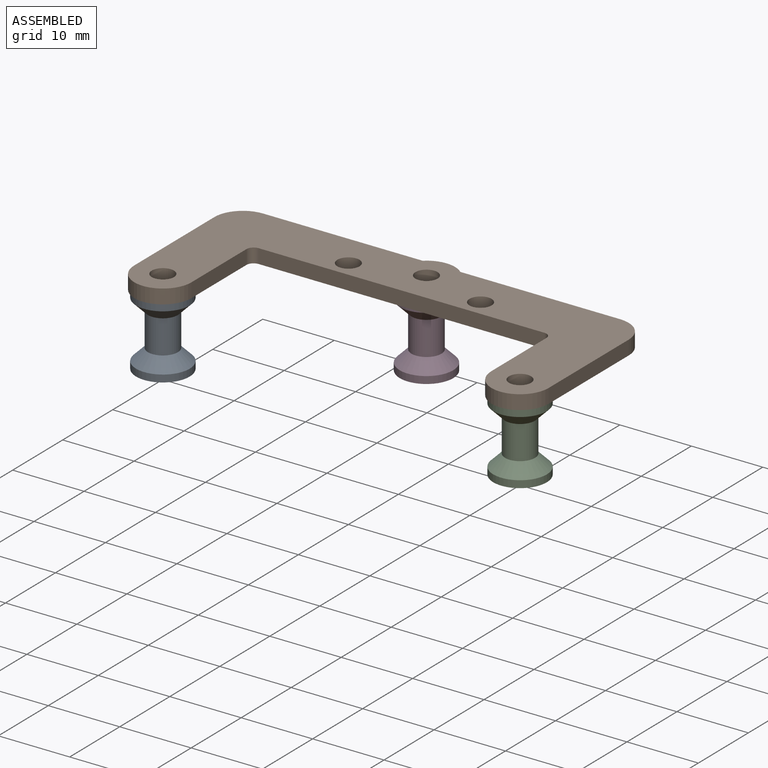
[diagram: assembled view]
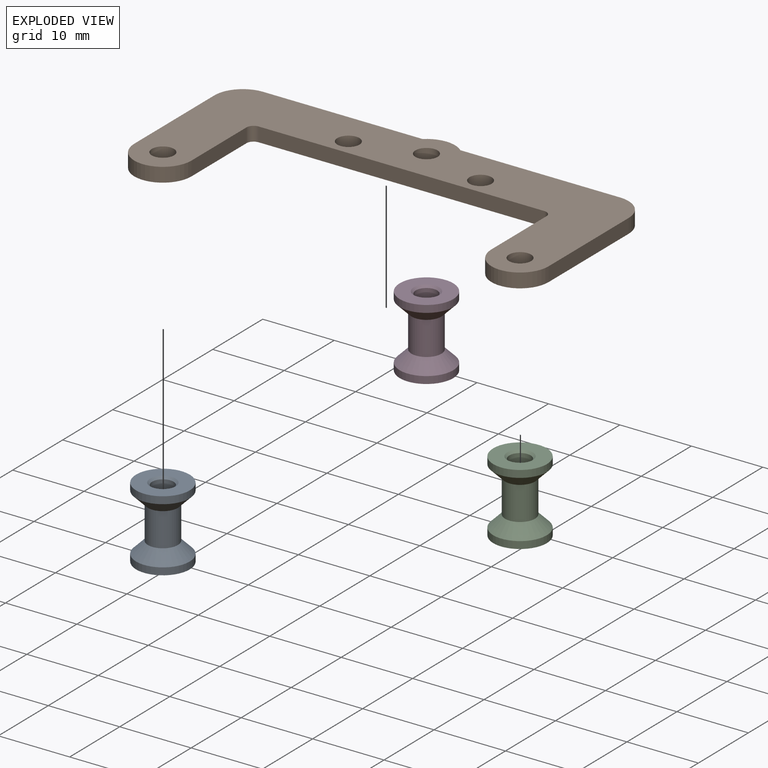
[diagram: exploded view]
GUIDED TOUR — MATED ASSEMBLY (Onshape document 5818caa24639c411078c767a, AutoMate assembly 5818caa24639c411078c767a_b3a73f36aeb4bb727f7abca7_d0a38f629c619f8892c96999_default)

This assembly has 4 components, labeled P0..P3 below (a component is one placed occurrence of a part; the same part can appear more than once), held together by 3 mates. A mate is a constraint between two components; its type names the relative motion it leaves free:
  FASTENED — locks the two components together rigidly (no relative motion).
Axis/direction vectors are unit vectors and 'through' points are millimeter coordinates, both in the assembly's world frame.

MATES
  1. FASTENED "Fastened 2": P3 <-> P1, direction (0.000, 0.000, 1.000) through (4.53, 14.87, 3.28) mm
  2. FASTENED "Fastened 1": P0 <-> P1, direction (0.000, 0.000, 1.000) through (-20.47, -2.13, 3.28) mm
  3. FASTENED "Fastened 3": P2 <-> P1, direction (0.000, 0.000, 1.000) through (29.53, -2.13, 3.28) mm

ASSEMBLY ORDER
  1. P3 — the base component [order verified]
  2. P2 [order verified]
  3. P0 [order verified]
  4. P1 [order verified]
Order-tag legend:
  [order verified] — this step's position reverses a verified removal order: the component was checked to insert without passing through the ones already placed.

Of the 4 components, 1 carries the full construction recipe — the FeatureScript program that regenerates the part's solid from scratch; the rest are supplied as boundary geometry only.
Each toured component is shown spotlighted twice — in the assembled view, then in the exploded view, where a leader line traces a displaced component back to its assembled socket (saturated green if recipe-attached, orange if geometry-only; every other component desaturated gray) — followed by its recipe or geometry summary and the mates that hold it.
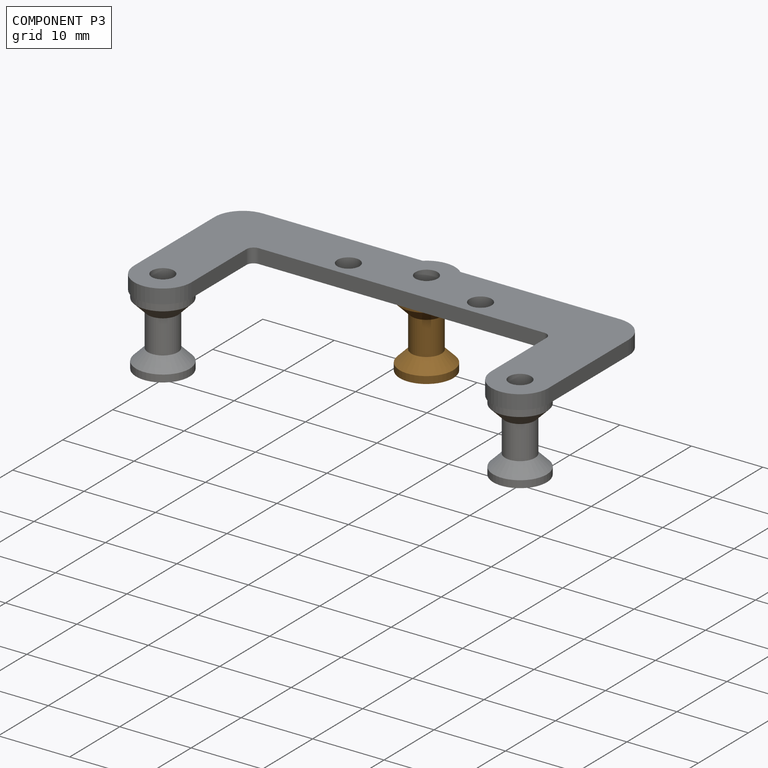
[diagram: component P3 — assembled]
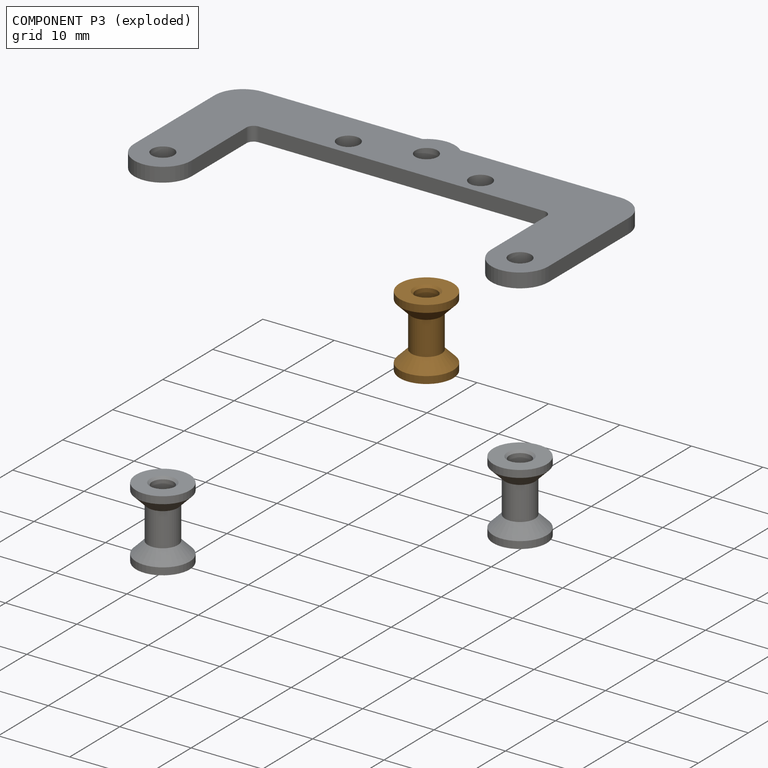
[diagram: component P3 — exploded]
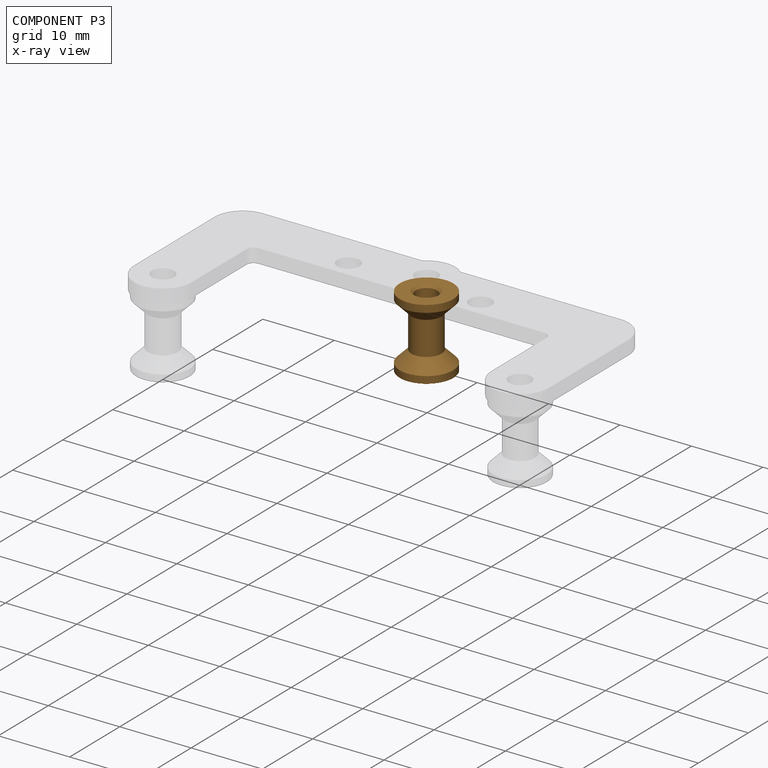
[diagram: component P3 — x-ray view]
COMPONENT P3 — geometry summary (no construction recipe available for this part):
  bounding box: 10.0 x 7.5 x 7.5 mm
  B-rep topology: 1 solid, 10 faces, 36 edges
  volume: 173 mm^3 (31% of its bounding box)
  symmetry: 2-fold rotationally symmetric about the x axis; 2-fold rotationally symmetric about the y axis; revolution-symmetric about the z axis through its bounding-box center; mirror-symmetric across its x mid-plane, y mid-plane, z mid-plane
Held by: FASTENED mate "Fastened 2" to P1.
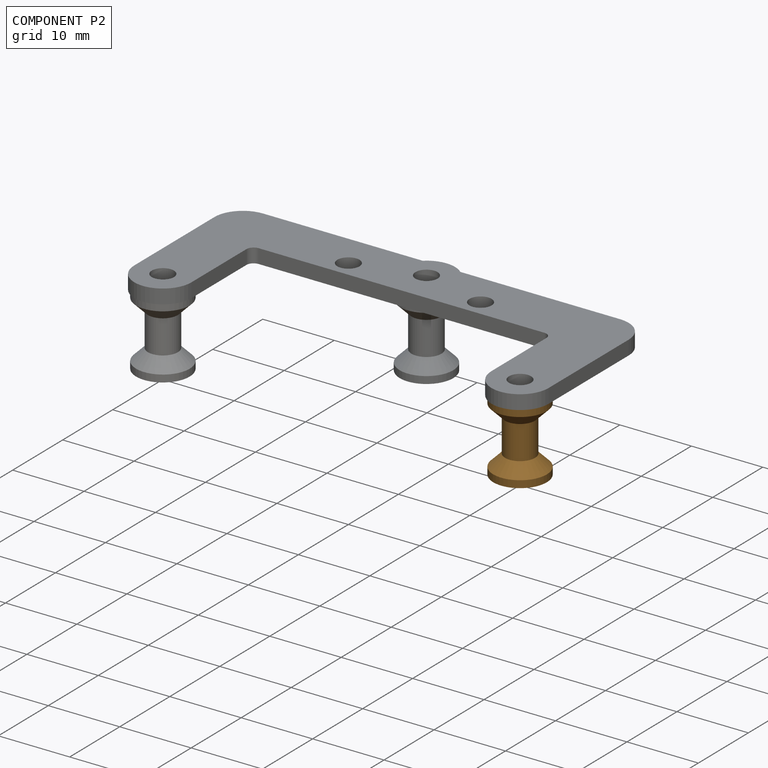
[diagram: component P2 — assembled]
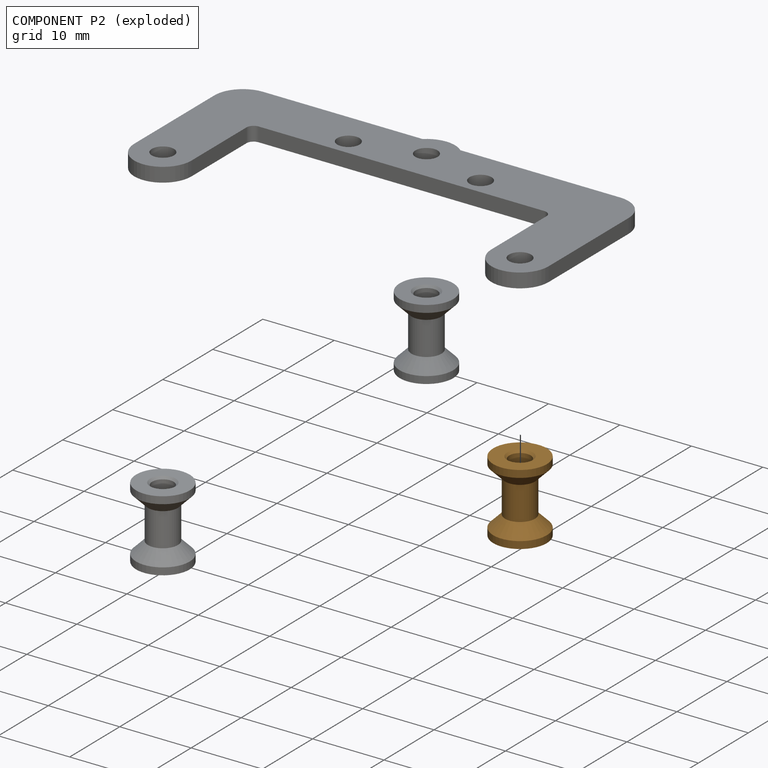
[diagram: component P2 — exploded]
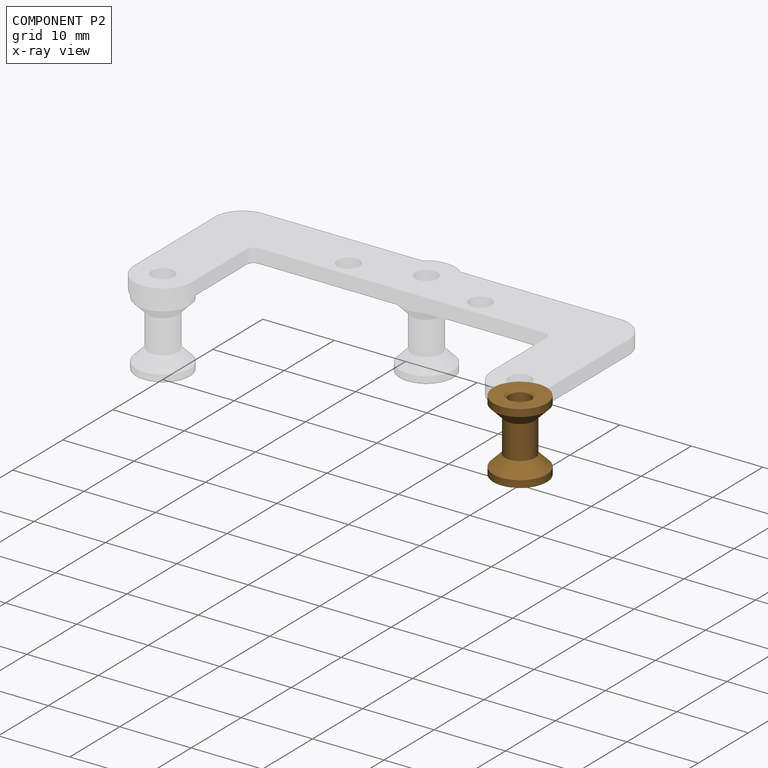
[diagram: component P2 — x-ray view]
COMPONENT P2 — geometry summary (no construction recipe available for this part):
  bounding box: 10.0 x 7.5 x 7.5 mm
  B-rep topology: 1 solid, 10 faces, 36 edges
  volume: 173 mm^3 (31% of its bounding box)
  symmetry: 2-fold rotationally symmetric about the x axis; 2-fold rotationally symmetric about the y axis; revolution-symmetric about the z axis through its bounding-box center; mirror-symmetric across its x mid-plane, y mid-plane, z mid-plane
Held by: FASTENED mate "Fastened 3" to P1.
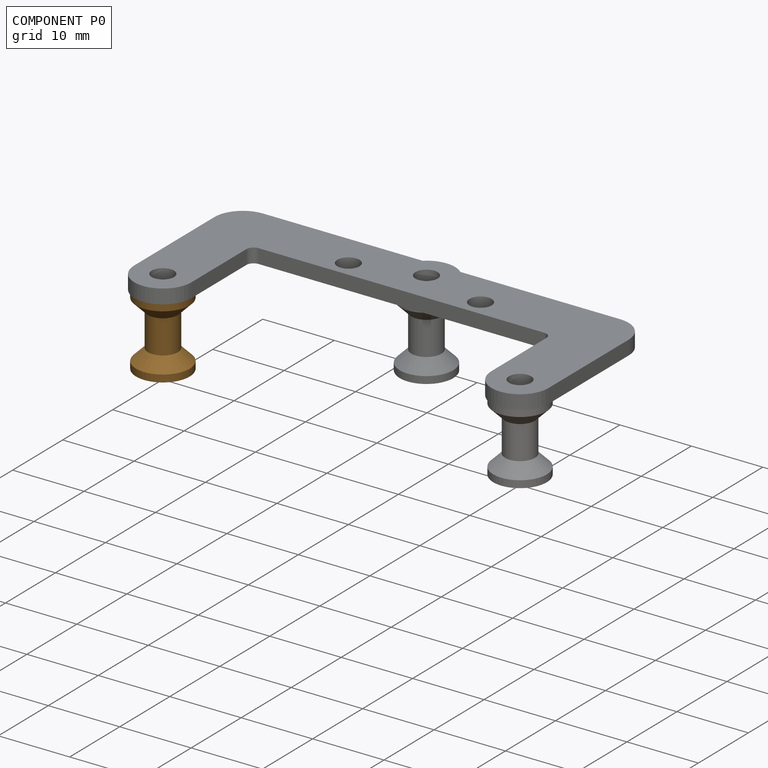
[diagram: component P0 — assembled]
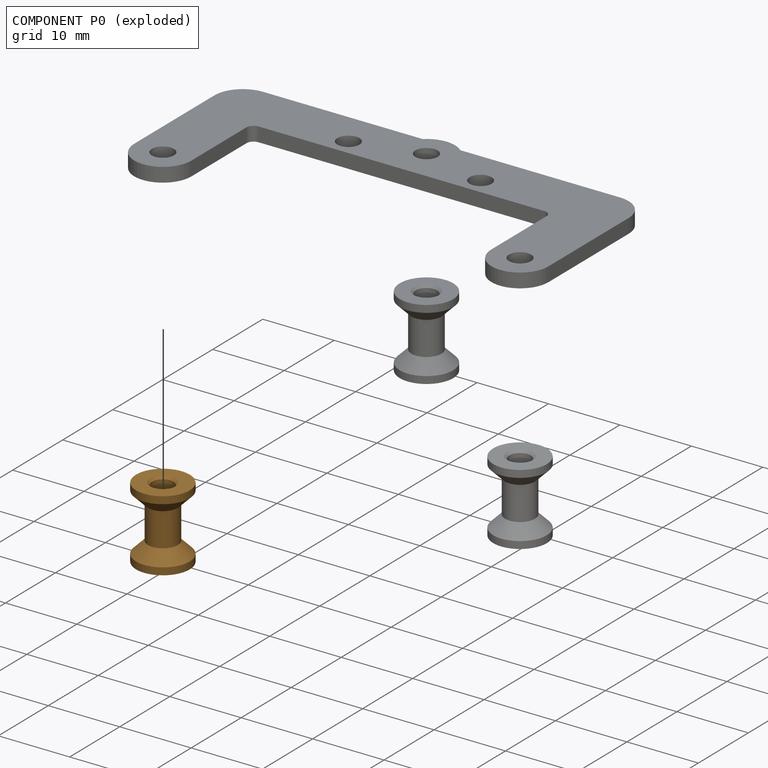
[diagram: component P0 — exploded]
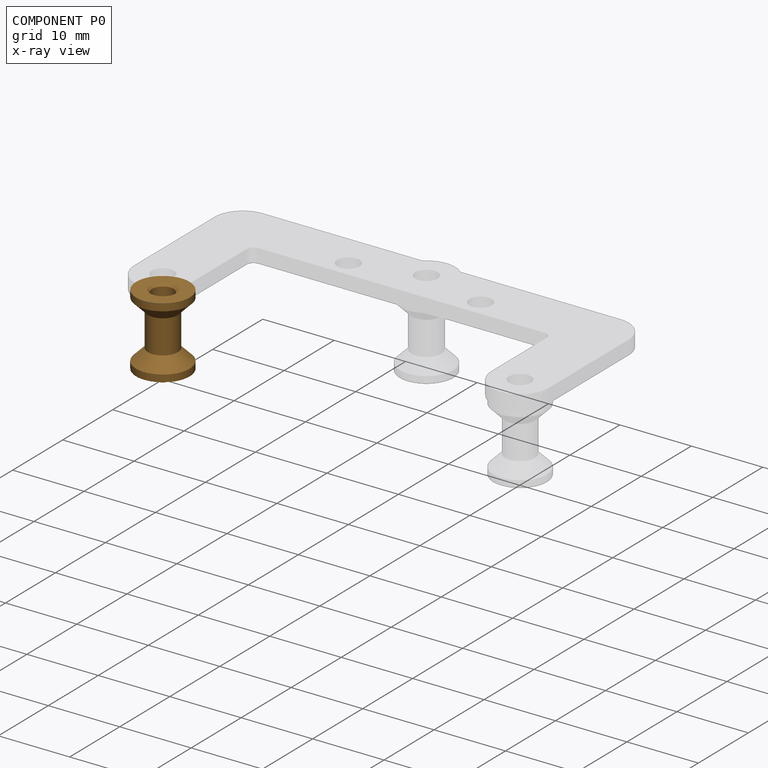
[diagram: component P0 — x-ray view]
COMPONENT P0 — geometry summary (no construction recipe available for this part):
  bounding box: 10.0 x 7.5 x 7.5 mm
  B-rep topology: 1 solid, 10 faces, 36 edges
  volume: 173 mm^3 (31% of its bounding box)
  symmetry: 2-fold rotationally symmetric about the x axis; 2-fold rotationally symmetric about the y axis; revolution-symmetric about the z axis through its bounding-box center; mirror-symmetric across its x mid-plane, y mid-plane, z mid-plane
Held by: FASTENED mate "Fastened 1" to P1.
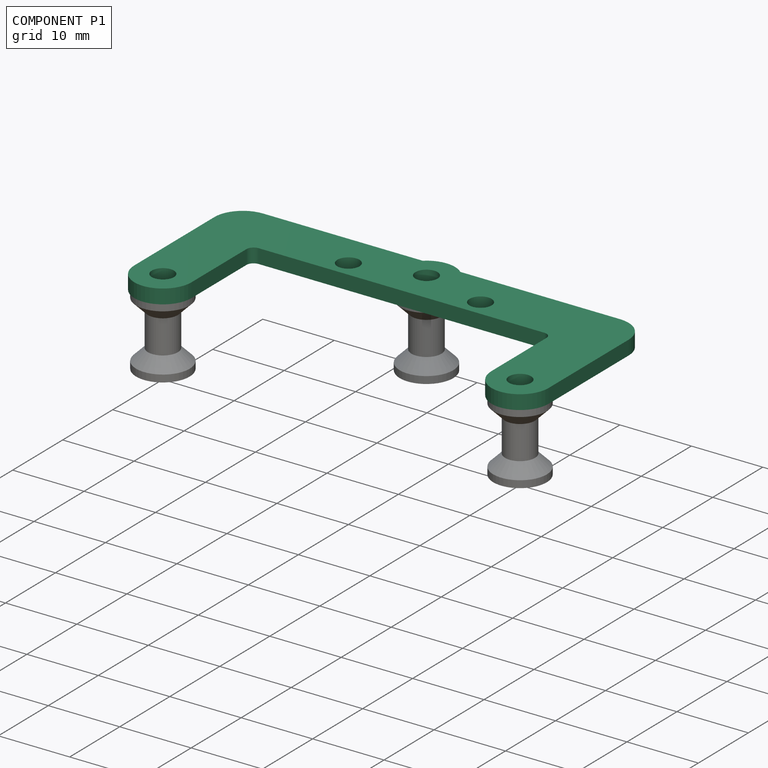
[diagram: component P1 — assembled]
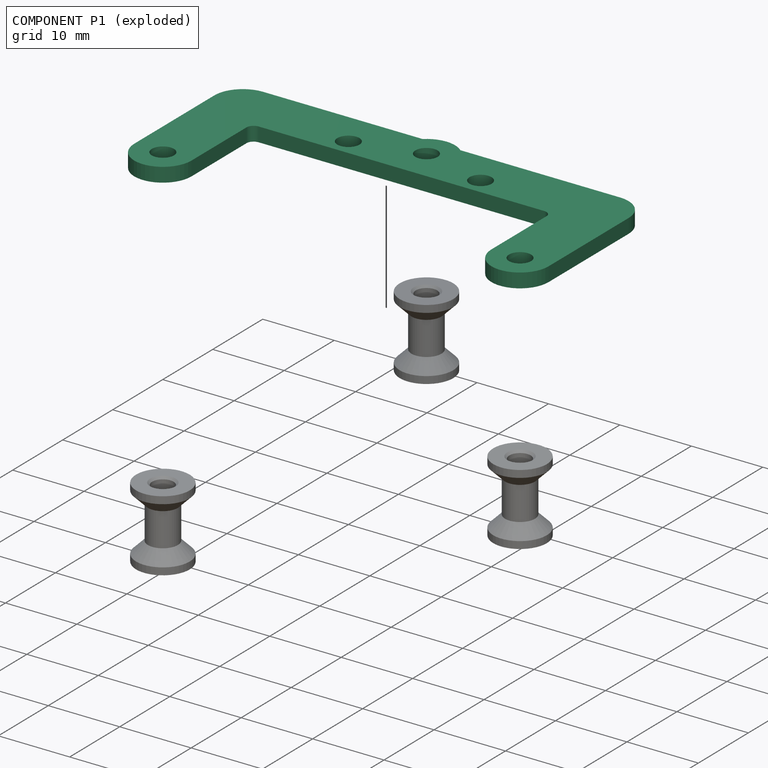
[diagram: component P1 — exploded]
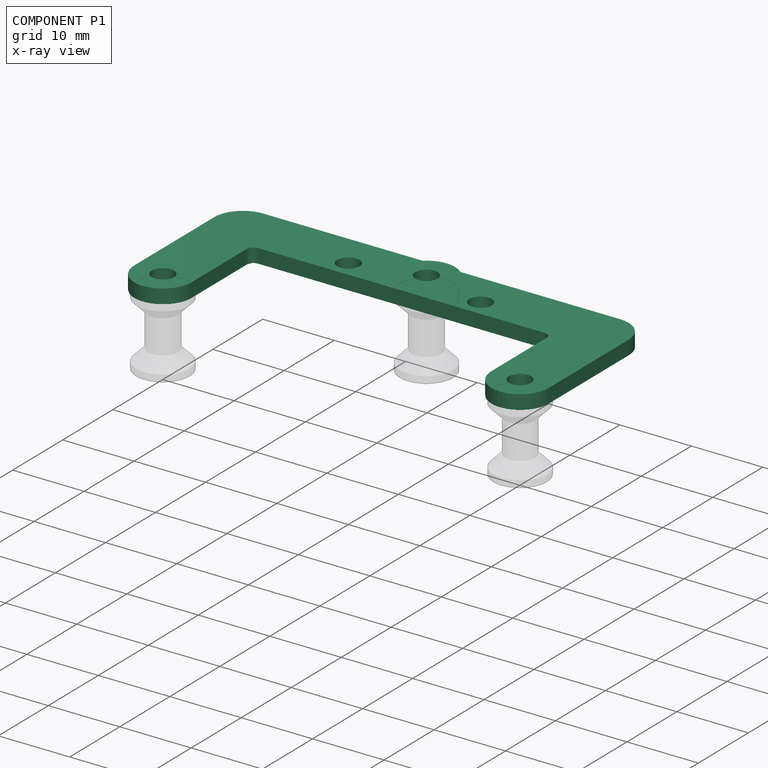
[diagram: component P1 — x-ray view]
COMPONENT P1 — recipe-attached (CADFS 00307878, mesh-verified: the recipe's output STEP matches this component's geometry to below the mesh-comparison resolution (tessellation chordal tolerance ~0.0948 mm)).
Held by: FASTENED mate "Fastened 2" to P3; FASTENED mate "Fastened 1" to P0; FASTENED mate "Fastened 3" to P2.
Construction recipe (FeatureScript — the CAD program that rebuilds this solid; sketch coordinates are in the units given by the * unit suffixes, e.g. mm):

FeatureScript 1511;
import(path : "onshape/std/geometry.fs", version : "1511.0");
import(path : "onshape/std/common.fs", version : "1511.0");
const mm = millimeter;
const VERTEX = EntityType.VERTEX;
const EDGE = EntityType.EDGE;
const FACE = EntityType.FACE;
const BODY = EntityType.BODY;
function v(x, y){return vector(x, y);}
function OD(order){return orderDisambiguation(order);}
function OSD(set){return originalSetDisambiguation(set);}
function TD(topology){return topologyDisambiguation(topology);}
function TDD(query){return trueDependencyDisambiguation(query);}
function sQuery(a, b, c) {return sketchEntityQuery(a, b, c);}

annotation { "Feature Type Name" : "Feature", "Feature Type Description" : "" }
export const myFeature = defineFeature(function(context is Context, id is Id, definition is map)
    precondition{}
    {
        {
            var Q0;
            Q0=qCreatedBy(makeId("Top.planeOp"),FACE);
            var sketch = newSketch(context, id + "F0", { "sketchPlane" : qUnion([Q0])});
            skLineSegment(sketch, "E0.bottom", {"start": v(20, -5) * mm, "end": v(-20, -5) * mm});
            skPoint(sketch, "E0.middle", {"position": v(0, 0) * mm});
            skCircle(sketch, "E1", {"center": v(9.25, -2.4) * mm, "radius": 1.55 * mm});
            skCircle(sketch, "E2", {"center": v(-9.25, -2.4) * mm, "radius": 1.55 * mm});
            skCircle(sketch, "E3", {"center": v(0, 0) * mm, "radius": 1.55 * mm});
            skLineSegment(sketch, "E4.top", {"start": v(25, -21) * mm, "end": v(25, -21) * mm});
            skLineSegment(sketch, "E4.left", {"start": v(21, -6) * mm, "end": v(21, -17) * mm});
            skLineSegment(sketch, "E4.right", {"start": v(29, -1) * mm, "end": v(29, -17) * mm});
            skLineSegment(sketch, "E5.MirrorCS", {"start": v(-21, -6) * mm, "end": v(-21, -17) * mm});
            skLineSegment(sketch, "E6.MirrorCS", {"start": v(-25, -21) * mm, "end": v(-25, -21) * mm});
            skCircle(sketch, "E7", {"center": v(25, -17) * mm, "radius": 1.55 * mm});
            skCircle(sketch, "E8.MirrorC", {"center": v(-25, -17) * mm, "radius": 1.55 * mm});
            skPoint(sketch, "E9.newPointA", {"position": v(20, -5) * mm});
            skArc(sketch, "E9.filletArc", {"start": v(21, -6) * mm, "mid": v(20.7, -5.3) * mm, "end": v(20, -5) * mm});
            skPoint(sketch, "E10.newPointA", {"position": v(-20, -5) * mm});
            skArc(sketch, "E10.filletArc", {"start": v(-20, -5) * mm, "mid": v(-20.7, -5.3) * mm, "end": v(-21, -6) * mm});
            skPoint(sketch, "E11.visualSharp", {"position": v(-29, -21) * mm});
            skArc(sketch, "E11.filletArc", {"start": v(-29, -17) * mm, "mid": v(-27.83, -19.83) * mm, "end": v(-25, -21) * mm});
            skPoint(sketch, "E12.visualSharp", {"position": v(-21, -21) * mm});
            skArc(sketch, "E12.filletArc", {"start": v(-25, -21) * mm, "mid": v(-22.17, -19.83) * mm, "end": v(-21, -17) * mm});
            skPoint(sketch, "E13.visualSharp", {"position": v(21, -21) * mm});
            skArc(sketch, "E13.filletArc", {"start": v(21, -17) * mm, "mid": v(22.17, -19.83) * mm, "end": v(25, -21) * mm});
            skPoint(sketch, "E14.visualSharp", {"position": v(29, -21) * mm});
            skArc(sketch, "E14.filletArc", {"start": v(25, -21) * mm, "mid": v(27.83, -19.83) * mm, "end": v(29, -17) * mm});
            skPoint(sketch, "E15.visualSharp", {"position": v(29, 3) * mm});
            skLineSegment(sketch, "E16", {"start": v(25, 3) * mm, "end": v(2.65, 3) * mm});
            skArc(sketch, "E17", {"start": v(-2.65, 3) * mm, "mid": v(0, 4) * mm, "end": v(2.65, 3) * mm});
            skArc(sketch, "E18.filletArc", {"start": v(29, -1) * mm, "mid": v(27.83, 1.83) * mm, "end": v(25, 3) * mm});
            skLineSegment(sketch, "E19.MirrorCS", {"start": v(-25, 3) * mm, "end": v(-2.65, 3) * mm});
            skArc(sketch, "E20.MirrorCS", {"start": v(-29, -1) * mm, "mid": v(-27.83, 1.83) * mm, "end": v(-25, 3) * mm});
            skLineSegment(sketch, "E21.MirrorCS", {"start": v(-29, -1) * mm, "end": v(-29, -17) * mm});
            skPoint(sketch, "E22.MirrorP", {"position": v(-29, 3) * mm});
            skSolve(sketch);
        }
        {
            var Q0;
            Q0=makeQuery(id+"F0.imprint","IMPRINT",FACE,{"disambiguationData":[TD([[makeQuery(id+"F0.imprint","IMPRINT",EDGE,{"derivedFrom":sQuery(id+"F0.wireOp",EDGE,"E0.bottom")}),-1.0]])]});
            extrude(context, id + "F1", {"entities" : qUnion([Q0]), "depth" : 2 * mm});
        }
    });
PROVENANCE & LICENSES
Assembly (occurrences, transforms, mates, per-part STEP geometry): AutoMate dataset, Zenodo record 7776208, CC0.
Construction recipes: CADFS (HuggingFace VladPyatov/CADFS, CC-BY-4.0, layered over the ABC dataset), FeatureScript reconstruction programs keyed by ABC model id.
Join: ABC meta listings map ABC model id -> Onshape documentId; within a shared document, parts are matched by geometric signature (bounding-box dims + volume at 0.1% relative tolerance, exact B-rep face/solid counts).
Verification: 1 of this assembly's 4 components carries a recipe attachment, and every attachment is mesh-verified: the CADFS STEP and the AutoMate member STEP were compared as meshes in their shared local frame (symmetric sampled-point-to-mesh distance); worst across the 1 attachment: below the mesh-comparison resolution (tessellation chordal tolerance ~0.0948 mm) on a 63 mm part.
Renders: orthographic iso camera (az 35 / el 25); the floor grid conveys scale (grid pitch printed in each image; no ruler). In the exploded view each component is displaced by its stored offset vector: the offsets alone carry the explosion direction (mate normal/axis signs are not orientation cues and do not encode it), and separation distances are assigned per mate-chain, not proportionally to assembly-order depth.
